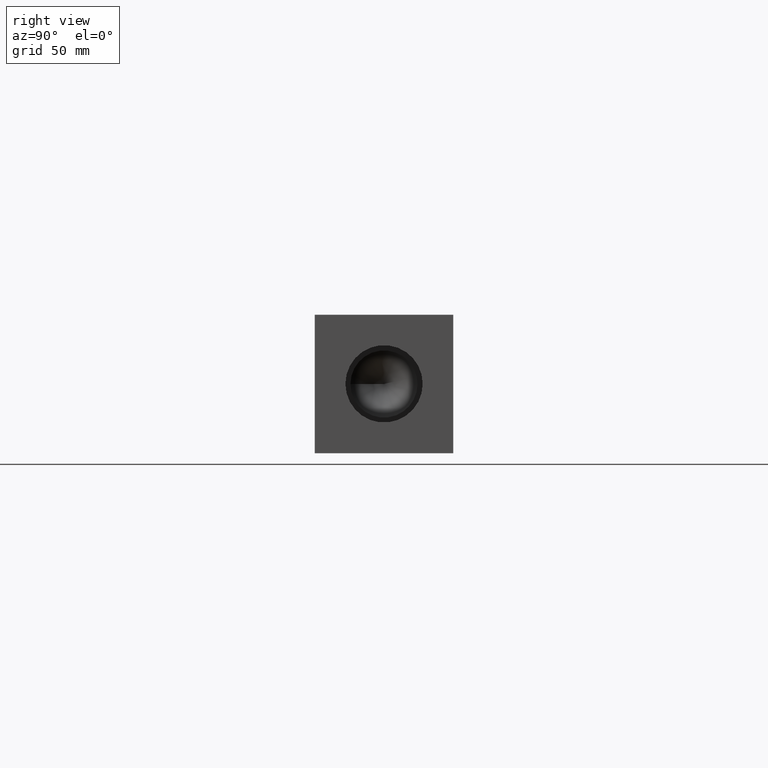
[diagram: clean part render]
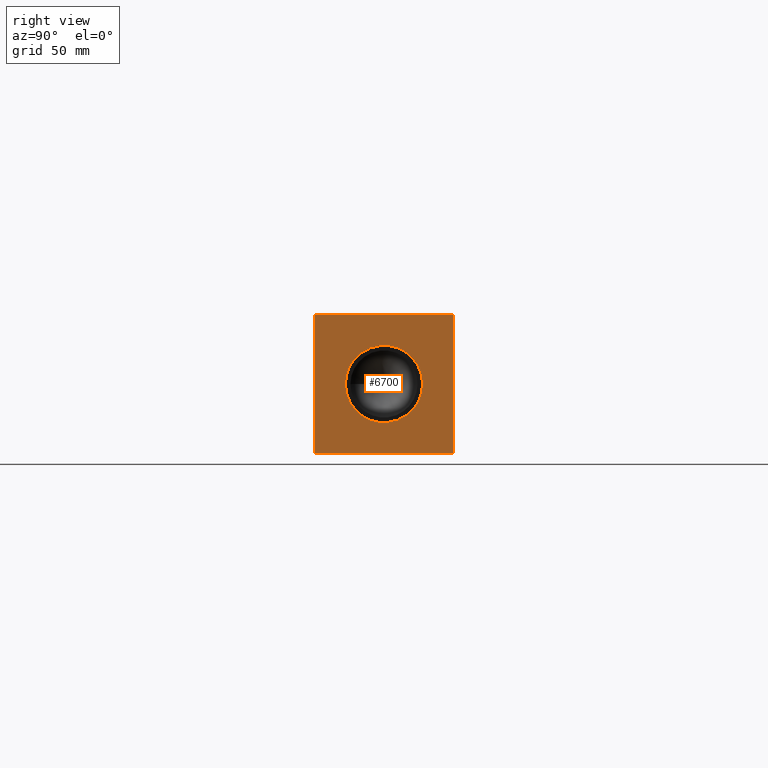
[diagram: same view with one face highlighted and labeled with its STEP entity id]
A machine part, right view. The second image highlights one B-rep face of the part: STEP entity #6700.
In plain terms, the highlighted planar face has unit normal (1, 0, 0).
Its self-contained STEP definition (entity closure, byte-faithful):
#71=CIRCLE('',#6974,21.2344);
#72=CIRCLE('',#6975,21.2344);
#146=FACE_BOUND('',#1096,.T.);
#375=PLANE('',#7030);
#713=FACE_OUTER_BOUND('',#1095,.T.);
#1095=EDGE_LOOP('',(#5968,#5969,#5970,#5971));
#1096=EDGE_LOOP('',(#5972,#5973));
#1373=LINE('',#10195,#2056);
#1783=LINE('',#11300,#2466);
#1784=LINE('',#11303,#2467);
#1785=LINE('',#11304,#2468);
#2056=VECTOR('',#7455,10.);
#2466=VECTOR('',#8339,10.);
#2467=VECTOR('',#8342,10.);
#2468=VECTOR('',#8343,10.);
#2919=VERTEX_POINT('',#10192);
#2920=VERTEX_POINT('',#10194);
#3212=VERTEX_POINT('',#11182);
#3213=VERTEX_POINT('',#11183);
#3250=VERTEX_POINT('',#11298);
#3251=VERTEX_POINT('',#11302);
#3673=EDGE_CURVE('',#2919,#2920,#1373,.T.);
#4107=EDGE_CURVE('',#3212,#3213,#71,.T.);
#4108=EDGE_CURVE('',#3213,#3212,#72,.T.);
#4161=EDGE_CURVE('',#3250,#2920,#1783,.T.);
#4162=EDGE_CURVE('',#3251,#3250,#1784,.T.);
#4163=EDGE_CURVE('',#3251,#2919,#1785,.T.);
#5968=ORIENTED_EDGE('',*,*,#4162,.T.);
#5969=ORIENTED_EDGE('',*,*,#4161,.T.);
#5970=ORIENTED_EDGE('',*,*,#3673,.F.);
#5971=ORIENTED_EDGE('',*,*,#4163,.F.);
#5972=ORIENTED_EDGE('',*,*,#4107,.T.);
#5973=ORIENTED_EDGE('',*,*,#4108,.T.);
#6700=ADVANCED_FACE('',(#713,#146),#375,.T.);
#6974=AXIS2_PLACEMENT_3D('',#11184,#8204,#8205);
#6975=AXIS2_PLACEMENT_3D('',#11185,#8206,#8207);
#7030=AXIS2_PLACEMENT_3D('',#11301,#8340,#8341);
#7455=DIRECTION('',(0.,1.,0.));
#8204=DIRECTION('center_axis',(-1.,0.,0.));
#8205=DIRECTION('ref_axis',(0.,1.,0.));
#8206=DIRECTION('center_axis',(-1.,0.,0.));
#8207=DIRECTION('ref_axis',(0.,1.,0.));
#8339=DIRECTION('',(0.,0.,1.));
#8340=DIRECTION('center_axis',(1.,0.,0.));
#8341=DIRECTION('ref_axis',(0.,1.,0.));
#8342=DIRECTION('',(0.,1.,0.));
#8343=DIRECTION('',(0.,0.,1.));
#10192=CARTESIAN_POINT('',(387.35,0.,76.2));
#10194=CARTESIAN_POINT('',(387.35,76.2,76.2));
#10195=CARTESIAN_POINT('',(387.35,0.,76.2));
#11182=CARTESIAN_POINT('',(387.35,59.3344,38.1));
#11183=CARTESIAN_POINT('',(387.35,16.8656,38.1));
#11184=CARTESIAN_POINT('Origin',(387.35,38.1,38.1));
#11185=CARTESIAN_POINT('Origin',(387.35,38.1,38.1));
#11298=CARTESIAN_POINT('',(387.35,76.2,0.));
#11300=CARTESIAN_POINT('',(387.35,76.2,0.));
#11301=CARTESIAN_POINT('Origin',(387.35,0.,0.));
#11302=CARTESIAN_POINT('',(387.35,0.,0.));
#11303=CARTESIAN_POINT('',(387.35,0.,0.));
#11304=CARTESIAN_POINT('',(387.35,0.,0.));